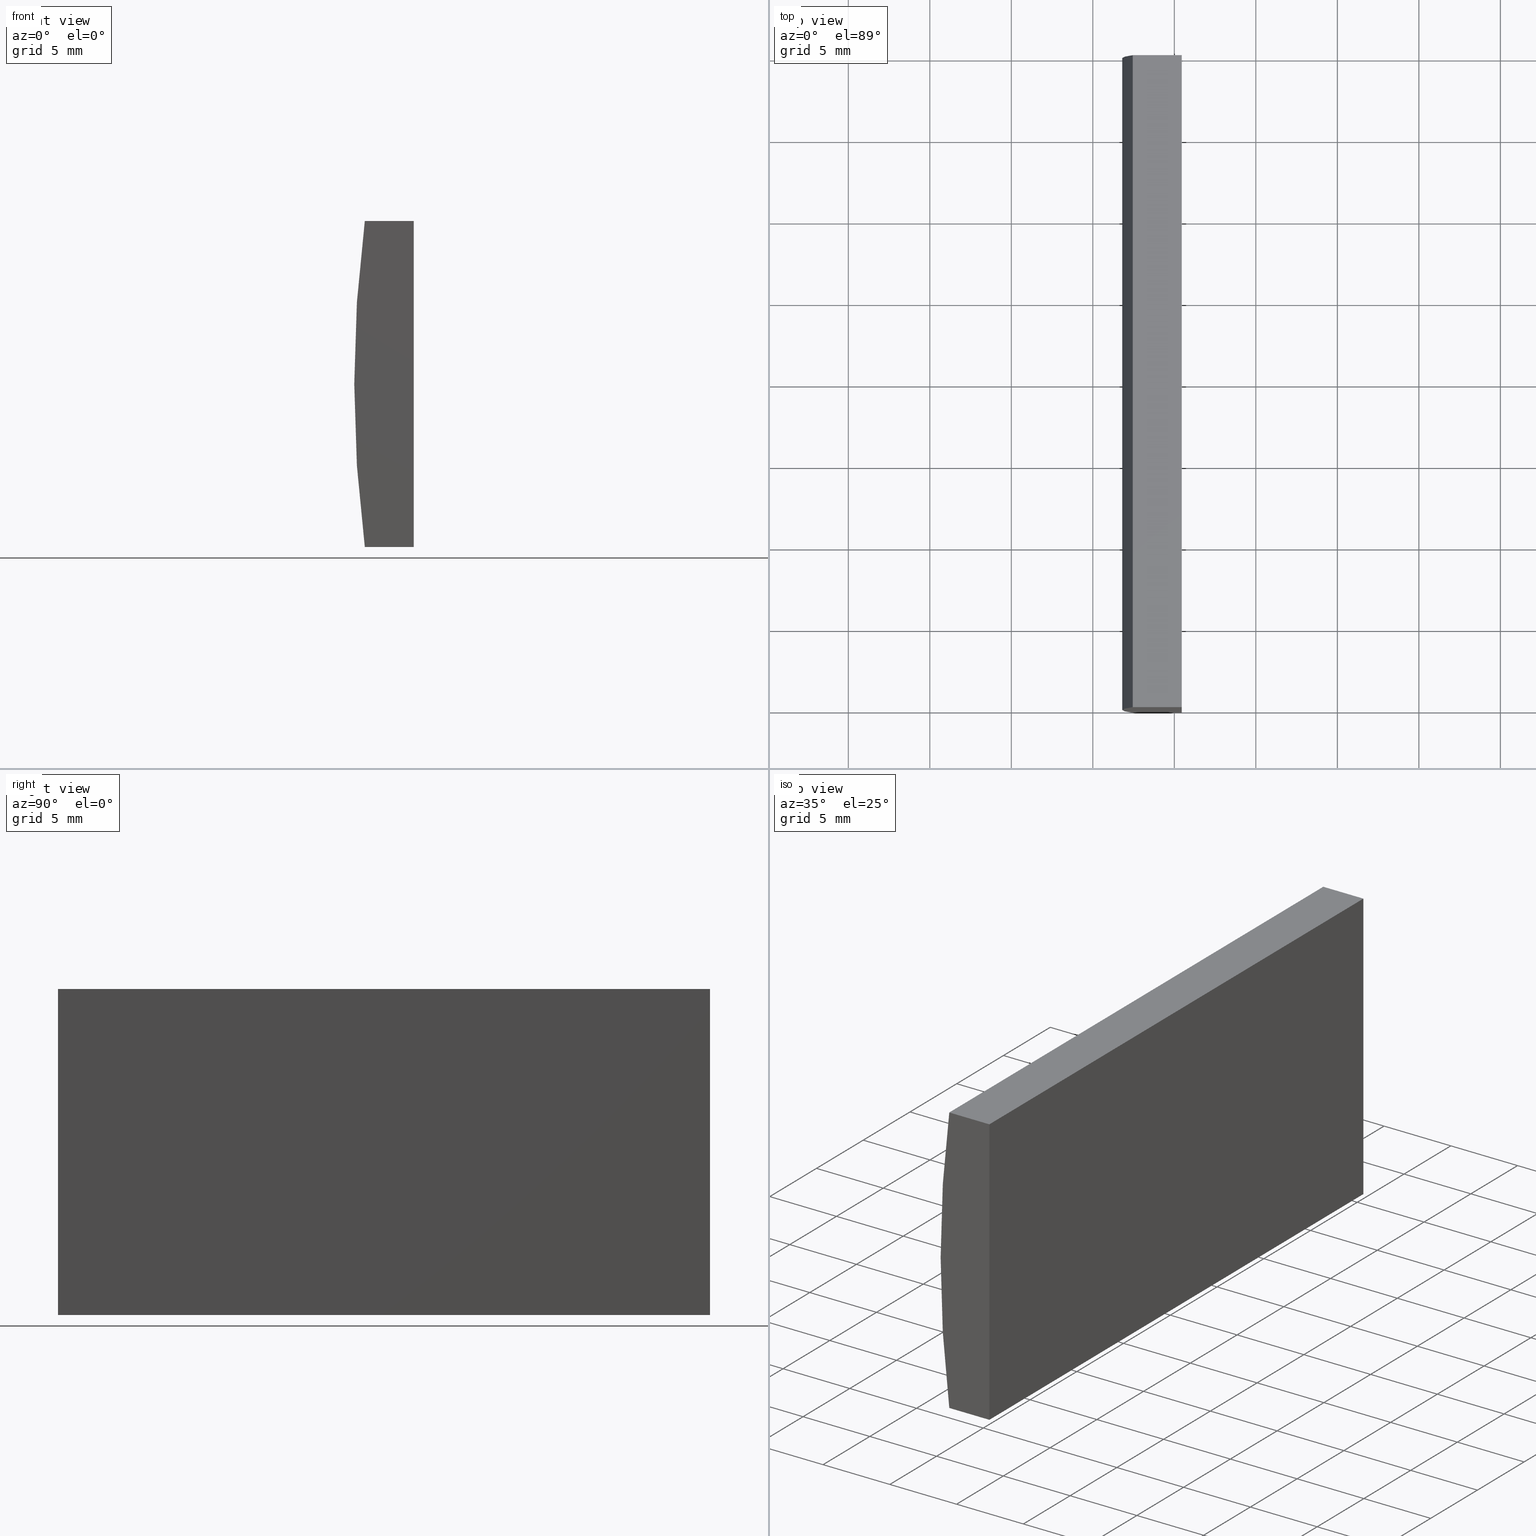
[diagram: canonical four-view strip — front | top / right | iso, engineering-drawing reading convention]
A machine part, canonical four-view strip (front | top / right | iso — engineering-drawing reading convention). The complete STEP part file that produces these views, byte-faithful:
ISO-10303-21;
HEADER;
FILE_DESCRIPTION (( 'STEP AP214' ),
    '1' );
FILE_NAME ('155050.STEP',
    '2019-06-18T06:02:12',
    ( 'user' ),
    ( '΢���й�' ),
    'SwSTEP 2.0',
    'SolidWorks 2016',
    '' );
FILE_SCHEMA (( 'AUTOMOTIVE_DESIGN' ));
ENDSEC;

DATA;
#1 = ORIENTED_EDGE ( 'NONE', *, *, #166, .F. ) ;
#2 = DIRECTION ( 'NONE',  ( 0.0000000000000000000, -0.0000000000000000000, 1.000000000000000000 ) ) ;
#3 = CARTESIAN_POINT ( 'NONE',  ( 4.355204334851265500, 0.0000000000000000000, 4.286263797015675000E-017 ) ) ;
#4 = STYLED_ITEM ( 'NONE', ( #117 ), #39 ) ;
#5 = ORIENTED_EDGE ( 'NONE', *, *, #200, .F. ) ;
#6 = SURFACE_STYLE_FILL_AREA ( #174 ) ;
#7 = DIRECTION ( 'NONE',  ( -0.0000000000000000000, -1.000000000000000000, -0.0000000000000000000 ) ) ;
#8 =( GEOMETRIC_REPRESENTATION_CONTEXT ( 3 ) GLOBAL_UNCERTAINTY_ASSIGNED_CONTEXT ( ( #141 ) ) GLOBAL_UNIT_ASSIGNED_CONTEXT ( ( #169, #50, #59 ) ) REPRESENTATION_CONTEXT ( 'NONE', 'WORKASPACE' ) );
#9 = PRODUCT_CONTEXT ( 'NONE', #36, 'mechanical' ) ;
#10 = VERTEX_POINT ( 'NONE', #33 ) ;
#11 = LINE ( 'NONE', #112, #54 ) ;
#12 = ORIENTED_EDGE ( 'NONE', *, *, #165, .T. ) ;
#13 = AXIS2_PLACEMENT_3D ( 'NONE', #35, #116, #37 ) ;
#14 = CARTESIAN_POINT ( 'NONE',  ( -72.54734763840902200, 40.00000000000000000, -10.00000000000000000 ) ) ;
#15 = EDGE_CURVE ( 'NONE', #183, #96, #198, .T. ) ;
#16 = LINE ( 'NONE', #148, #177 ) ;
#17 = CYLINDRICAL_SURFACE ( 'NONE', #13, 77.54999999999999700 ) ;
#18 = VERTEX_POINT ( 'NONE', #154 ) ;
#19 = PLANE ( 'NONE',  #188 ) ;
#20 = AXIS2_PLACEMENT_3D ( 'NONE', #34, #69, #195 ) ;
#21 = LINE ( 'NONE', #152, #136 ) ;
#22 = EDGE_LOOP ( 'NONE', ( #145, #41, #29, #60 ) ) ;
#23 = ORIENTED_EDGE ( 'NONE', *, *, #121, .F. ) ;
#24 = ADVANCED_FACE ( 'NONE', ( #168 ), #95, .F. ) ;
#25 = PRESENTATION_STYLE_ASSIGNMENT (( #123 ) ) ;
#26 = FACE_OUTER_BOUND ( 'NONE', #27, .T. ) ;
#27 = EDGE_LOOP ( 'NONE', ( #5, #160, #99, #137 ) ) ;
#28 = DIRECTION ( 'NONE',  ( -1.000000000000000000, -0.0000000000000000000, -5.777496914044019200E-015 ) ) ;
#29 = ORIENTED_EDGE ( 'NONE', *, *, #113, .T. ) ;
#30 = DIRECTION ( 'NONE',  ( 0.0000000000000000000, 0.0000000000000000000, 1.000000000000000000 ) ) ;
#31 = FILL_AREA_STYLE_COLOUR ( '', #42 ) ;
#32 = ORIENTED_EDGE ( 'NONE', *, *, #113, .F. ) ;
#33 = CARTESIAN_POINT ( 'NONE',  ( -69.54479566514874000, 0.0000000000000000000, -9.999999999999982200 ) ) ;
#34 = CARTESIAN_POINT ( 'NONE',  ( -72.54734763840902200, 40.00000000000000000, -10.00000000000000000 ) ) ;
#35 = CARTESIAN_POINT ( 'NONE',  ( 4.355204334851265500, 40.00000000000000000, 4.286263797015675000E-017 ) ) ;
#36 = APPLICATION_CONTEXT ( 'automotive_design' ) ;
#37 = DIRECTION ( 'NONE',  ( 0.0000000000000000000, 0.0000000000000000000, -1.000000000000000000 ) ) ;
#38 = DIRECTION ( 'NONE',  ( 0.0000000000000000000, 0.0000000000000000000, 1.000000000000000000 ) ) ;
#39 = MANIFOLD_SOLID_BREP ( '͹̨-����1', #176 ) ;
#40 = EDGE_CURVE ( 'NONE', #96, #10, #11, .T. ) ;
#41 = ORIENTED_EDGE ( 'NONE', *, *, #121, .T. ) ;
#42 = COLOUR_RGB ( '',1.000000000000000000, 1.000000000000000000, 1.000000000000000000 ) ;
#43 = DIRECTION ( 'NONE',  ( -1.000000000000000000, -0.0000000000000000000, -5.777496914044019200E-015 ) ) ;
#44 = SURFACE_SIDE_STYLE ('',( #6 ) ) ;
#45 = LINE ( 'NONE', #173, #192 ) ;
#46 = ORIENTED_EDGE ( 'NONE', *, *, #101, .T. ) ;
#47 = ORIENTED_EDGE ( 'NONE', *, *, #181, .F. ) ;
#48 = APPLICATION_PROTOCOL_DEFINITION ( 'draft international standard', 'automotive_design', 1998, #52 ) ;
#49 = LINE ( 'NONE', #14, #98 ) ;
#50 =( NAMED_UNIT ( * ) PLANE_ANGLE_UNIT ( ) SI_UNIT ( $, .RADIAN. ) );
#51 = DIRECTION ( 'NONE',  ( 0.0000000000000000000, 1.000000000000000000, 0.0000000000000000000 ) ) ;
#52 = APPLICATION_CONTEXT ( 'automotive_design' ) ;
#53 = CARTESIAN_POINT ( 'NONE',  ( -69.54479566514874000, 0.0000000000000000000, 10.00000000000000000 ) ) ;
#54 = VECTOR ( 'NONE', #122, 1000.000000000000000 ) ;
#55 = APPLICATION_PROTOCOL_DEFINITION ( 'draft international standard', 'automotive_design', 1998, #36 ) ;
#56 = AXIS2_PLACEMENT_3D ( 'NONE', #185, #80, #88 ) ;
#57 = PRESENTATION_LAYER_ASSIGNMENT (  '', '', ( #4 ) ) ;
#58 = LINE ( 'NONE', #94, #132 ) ;
#59 =( NAMED_UNIT ( * ) SI_UNIT ( $, .STERADIAN. ) SOLID_ANGLE_UNIT ( ) );
#60 = ORIENTED_EDGE ( 'NONE', *, *, #181, .T. ) ;
#61 = PRODUCT_DEFINITION_CONTEXT ( 'detailed design', #52, 'design' ) ;
#62 = PLANE ( 'NONE',  #149 ) ;
#63 =( NAMED_UNIT ( * ) PLANE_ANGLE_UNIT ( ) SI_UNIT ( $, .RADIAN. ) );
#64 = AXIS2_PLACEMENT_3D ( 'NONE', #139, #51, #178 ) ;
#65 = VECTOR ( 'NONE', #68, 1000.000000000000000 ) ;
#66 = ORIENTED_EDGE ( 'NONE', *, *, #40, .T. ) ;
#67 = ORIENTED_EDGE ( 'NONE', *, *, #165, .F. ) ;
#68 = DIRECTION ( 'NONE',  ( -0.0000000000000000000, -1.000000000000000000, -0.0000000000000000000 ) ) ;
#69 = DIRECTION ( 'NONE',  ( -5.777496914044019200E-015, 0.0000000000000000000, 1.000000000000000000 ) ) ;
#70 = ADVANCED_FACE ( 'NONE', ( #150 ), #17, .T. ) ;
#71 = CARTESIAN_POINT ( 'NONE',  ( -72.54734763840902200, 40.00000000000000000, 10.00000000000000000 ) ) ;
#72 = CIRCLE ( 'NONE', #138, 77.54999999999999700 ) ;
#73 = VERTEX_POINT ( 'NONE', #75 ) ;
#74 = ADVANCED_FACE ( 'NONE', ( #82 ), #19, .F. ) ;
#75 = CARTESIAN_POINT ( 'NONE',  ( -69.54479566514874000, 40.00000000000000000, -9.999999999999982200 ) ) ;
#76 = FACE_OUTER_BOUND ( 'NONE', #203, .T. ) ;
#77 = SURFACE_SIDE_STYLE ('',( #115 ) ) ;
#78 = DIRECTION ( 'NONE',  ( 0.0000000000000000000, 0.0000000000000000000, -1.000000000000000000 ) ) ;
#79 =( GEOMETRIC_REPRESENTATION_CONTEXT ( 3 ) GLOBAL_UNCERTAINTY_ASSIGNED_CONTEXT ( ( #93 ) ) GLOBAL_UNIT_ASSIGNED_CONTEXT ( ( #91, #63, #125 ) ) REPRESENTATION_CONTEXT ( 'NONE', 'WORKASPACE' ) );
#80 = DIRECTION ( 'NONE',  ( 0.0000000000000000000, 1.000000000000000000, 0.0000000000000000000 ) ) ;
#81 =( NAMED_UNIT ( * ) SI_UNIT ( $, .STERADIAN. ) SOLID_ANGLE_UNIT ( ) );
#82 = FACE_OUTER_BOUND ( 'NONE', #85, .T. ) ;
#83 = VERTEX_POINT ( 'NONE', #189 ) ;
#84 = VECTOR ( 'NONE', #28, 1000.000000000000000 ) ;
#85 = EDGE_LOOP ( 'NONE', ( #127, #119, #23, #46 ) ) ;
#86 = EDGE_CURVE ( 'NONE', #89, #83, #155, .T. ) ;
#87 = EDGE_CURVE ( 'NONE', #18, #96, #193, .T. ) ;
#88 = DIRECTION ( 'NONE',  ( 0.0000000000000000000, 0.0000000000000000000, 1.000000000000000000 ) ) ;
#89 = VERTEX_POINT ( 'NONE', #130 ) ;
#90 = ORIENTED_EDGE ( 'NONE', *, *, #101, .F. ) ;
#91 =( LENGTH_UNIT ( ) NAMED_UNIT ( * ) SI_UNIT ( .MILLI., .METRE. ) );
#92 = CARTESIAN_POINT ( 'NONE',  ( -72.54734763840902200, 40.00000000000000000, -10.00000000000000000 ) ) ;
#93 = UNCERTAINTY_MEASURE_WITH_UNIT (LENGTH_MEASURE( 1.000000000000000100E-005 ), #91, 'distance_accuracy_value', 'NONE');
#94 = CARTESIAN_POINT ( 'NONE',  ( -72.54734763840902200, 0.0000000000000000000, -10.00000000000000000 ) ) ;
#95 = PLANE ( 'NONE',  #172 ) ;
#96 = VERTEX_POINT ( 'NONE', #53 ) ;
#97 = CARTESIAN_POINT ( 'NONE',  ( -69.54479566514874000, 40.00000000000000000, 10.00000000000000000 ) ) ;
#98 = VECTOR ( 'NONE', #129, 1000.000000000000000 ) ;
#99 = ORIENTED_EDGE ( 'NONE', *, *, #40, .F. ) ;
#100 =( LENGTH_UNIT ( ) NAMED_UNIT ( * ) SI_UNIT ( .MILLI., .METRE. ) );
#101 = EDGE_CURVE ( 'NONE', #83, #18, #114, .T. ) ;
#102 = SHAPE_DEFINITION_REPRESENTATION ( #187, #107 ) ;
#103 = ADVANCED_FACE ( 'NONE', ( #76 ), #131, .F. ) ;
#104 = MECHANICAL_DESIGN_GEOMETRIC_PRESENTATION_REPRESENTATION (  '', ( #4 ), #184 ) ;
#105 = PRODUCT_DEFINITION ( 'δ֪', '', #199, #61 ) ;
#106 = STYLED_ITEM ( 'NONE', ( #25 ), #107 ) ;
#107 = ADVANCED_BREP_SHAPE_REPRESENTATION ( '155050', ( #39, #110 ), #79 ) ;
#108 = DIRECTION ( 'NONE',  ( -0.0000000000000000000, -1.000000000000000000, -0.0000000000000000000 ) ) ;
#109 = EDGE_CURVE ( 'NONE', #10, #151, #58, .T. ) ;
#110 = AXIS2_PLACEMENT_3D ( 'NONE', #167, #30, #164 ) ;
#111 = DIRECTION ( 'NONE',  ( 1.000000000000000000, 0.0000000000000000000, 0.0000000000000000000 ) ) ;
#112 = CARTESIAN_POINT ( 'NONE',  ( -69.54479566514874000, 0.0000000000000000000, -9.999999999999982200 ) ) ;
#113 = EDGE_CURVE ( 'NONE', #183, #73, #45, .T. ) ;
#114 = LINE ( 'NONE', #179, #65 ) ;
#115 = SURFACE_STYLE_FILL_AREA ( #204 ) ;
#116 = DIRECTION ( 'NONE',  ( -0.0000000000000000000, -1.000000000000000000, -0.0000000000000000000 ) ) ;
#117 = PRESENTATION_STYLE_ASSIGNMENT (( #186 ) ) ;
#118 = PLANE ( 'NONE',  #64 ) ;
#119 = ORIENTED_EDGE ( 'NONE', *, *, #15, .F. ) ;
#120 = CARTESIAN_POINT ( 'NONE',  ( -72.54734763840902200, 0.0000000000000000000, 10.00000000000000000 ) ) ;
#121 = EDGE_CURVE ( 'NONE', #83, #183, #21, .T. ) ;
#122 = DIRECTION ( 'NONE',  ( -0.0000000000000000000, -0.0000000000000000000, -1.000000000000000000 ) ) ;
#123 = SURFACE_STYLE_USAGE ( .BOTH. , #44 ) ;
#124 = PRODUCT_RELATED_PRODUCT_CATEGORY ( 'part', '', ( #156 ) ) ;
#125 =( NAMED_UNIT ( * ) SI_UNIT ( $, .STERADIAN. ) SOLID_ANGLE_UNIT ( ) );
#126 = VECTOR ( 'NONE', #111, 1000.000000000000000 ) ;
#127 = ORIENTED_EDGE ( 'NONE', *, *, #87, .T. ) ;
#128 = DIRECTION ( 'NONE',  ( -1.000000000000000000, 0.0000000000000000000, 0.0000000000000000000 ) ) ;
#129 = DIRECTION ( 'NONE',  ( -0.0000000000000000000, -1.000000000000000000, -0.0000000000000000000 ) ) ;
#130 = CARTESIAN_POINT ( 'NONE',  ( -72.54734763840902200, 40.00000000000000000, -10.00000000000000000 ) ) ;
#131 = PLANE ( 'NONE',  #20 ) ;
#132 = VECTOR ( 'NONE', #43, 1000.000000000000000 ) ;
#133 = DIRECTION ( 'NONE',  ( 1.000000000000000000, 0.0000000000000000000, 0.0000000000000000000 ) ) ;
#134 = PRESENTATION_LAYER_ASSIGNMENT (  '', '', ( #106 ) ) ;
#135 =( NAMED_UNIT ( * ) PLANE_ANGLE_UNIT ( ) SI_UNIT ( $, .RADIAN. ) );
#136 = VECTOR ( 'NONE', #133, 1000.000000000000000 ) ;
#137 = ORIENTED_EDGE ( 'NONE', *, *, #87, .F. ) ;
#138 = AXIS2_PLACEMENT_3D ( 'NONE', #3, #197, #38 ) ;
#139 = CARTESIAN_POINT ( 'NONE',  ( 4.355204334851265500, 0.0000000000000000000, 4.286263797015675000E-017 ) ) ;
#140 = DIRECTION ( 'NONE',  ( -0.0000000000000000000, -0.0000000000000000000, -1.000000000000000000 ) ) ;
#141 = UNCERTAINTY_MEASURE_WITH_UNIT (LENGTH_MEASURE( 1.000000000000000100E-005 ), #169, 'distance_accuracy_value', 'NONE');
#142 = CARTESIAN_POINT ( 'NONE',  ( -69.54479566514874000, 40.00000000000000000, -9.999999999999982200 ) ) ;
#143 = EDGE_LOOP ( 'NONE', ( #66, #1, #32, #171 ) ) ;
#144 = MECHANICAL_DESIGN_GEOMETRIC_PRESENTATION_REPRESENTATION (  '', ( #106 ), #8 ) ;
#145 = ORIENTED_EDGE ( 'NONE', *, *, #86, .T. ) ;
#146 = ADVANCED_FACE ( 'NONE', ( #182 ), #62, .T. ) ;
#147 = ORIENTED_EDGE ( 'NONE', *, *, #86, .F. ) ;
#148 = CARTESIAN_POINT ( 'NONE',  ( -69.54479566514874000, 40.00000000000000000, -9.999999999999982200 ) ) ;
#149 = AXIS2_PLACEMENT_3D ( 'NONE', #158, #191, #2 ) ;
#150 = FACE_OUTER_BOUND ( 'NONE', #190, .T. ) ;
#151 = VERTEX_POINT ( 'NONE', #170 ) ;
#152 = CARTESIAN_POINT ( 'NONE',  ( -72.54734763840902200, 40.00000000000000000, 10.00000000000000000 ) ) ;
#153 = ORIENTED_EDGE ( 'NONE', *, *, #166, .T. ) ;
#154 = CARTESIAN_POINT ( 'NONE',  ( -72.54734763840902200, 0.0000000000000000000, 10.00000000000000000 ) ) ;
#155 = CIRCLE ( 'NONE', #56, 77.54999999999999700 ) ;
#156 = PRODUCT ( '155050', '155050', '', ( #9 ) ) ;
#157 = ORIENTED_EDGE ( 'NONE', *, *, #109, .T. ) ;
#158 = CARTESIAN_POINT ( 'NONE',  ( 4.355204334851265500, 40.00000000000000000, 4.286263797015675000E-017 ) ) ;
#159 = UNCERTAINTY_MEASURE_WITH_UNIT (LENGTH_MEASURE( 1.000000000000000100E-005 ), #100, 'distance_accuracy_value', 'NONE');
#160 = ORIENTED_EDGE ( 'NONE', *, *, #109, .F. ) ;
#161 = DIRECTION ( 'NONE',  ( 0.0000000000000000000, 0.0000000000000000000, 1.000000000000000000 ) ) ;
#162 = LINE ( 'NONE', #92, #84 ) ;
#163 = COLOUR_RGB ( '',1.000000000000000000, 1.000000000000000000, 1.000000000000000000 ) ;
#164 = DIRECTION ( 'NONE',  ( 1.000000000000000000, 0.0000000000000000000, 0.0000000000000000000 ) ) ;
#165 = EDGE_CURVE ( 'NONE', #89, #151, #49, .T. ) ;
#166 = EDGE_CURVE ( 'NONE', #73, #10, #16, .T. ) ;
#167 = CARTESIAN_POINT ( 'NONE',  ( 0.0000000000000000000, 0.0000000000000000000, 0.0000000000000000000 ) ) ;
#168 = FACE_OUTER_BOUND ( 'NONE', #143, .T. ) ;
#169 =( LENGTH_UNIT ( ) NAMED_UNIT ( * ) SI_UNIT ( .MILLI., .METRE. ) );
#170 = CARTESIAN_POINT ( 'NONE',  ( -72.54734763840902200, 0.0000000000000000000, -10.00000000000000000 ) ) ;
#171 = ORIENTED_EDGE ( 'NONE', *, *, #15, .T. ) ;
#172 = AXIS2_PLACEMENT_3D ( 'NONE', #142, #128, #161 ) ;
#173 = CARTESIAN_POINT ( 'NONE',  ( -69.54479566514874000, 40.00000000000000000, -9.999999999999982200 ) ) ;
#174 = FILL_AREA_STYLE ('',( #31 ) ) ;
#175 = FILL_AREA_STYLE_COLOUR ( '', #163 ) ;
#176 = CLOSED_SHELL ( 'NONE', ( #70, #74, #24, #103, #146, #202 ) ) ;
#177 = VECTOR ( 'NONE', #7, 1000.000000000000000 ) ;
#178 = DIRECTION ( 'NONE',  ( 0.0000000000000000000, -0.0000000000000000000, 1.000000000000000000 ) ) ;
#179 = CARTESIAN_POINT ( 'NONE',  ( -72.54734763840902200, 40.00000000000000000, 10.00000000000000000 ) ) ;
#180 = DIRECTION ( 'NONE',  ( -1.000000000000000000, 0.0000000000000000000, -0.0000000000000000000 ) ) ;
#181 = EDGE_CURVE ( 'NONE', #73, #89, #162, .T. ) ;
#182 = FACE_OUTER_BOUND ( 'NONE', #22, .T. ) ;
#183 = VERTEX_POINT ( 'NONE', #97 ) ;
#184 =( GEOMETRIC_REPRESENTATION_CONTEXT ( 3 ) GLOBAL_UNCERTAINTY_ASSIGNED_CONTEXT ( ( #159 ) ) GLOBAL_UNIT_ASSIGNED_CONTEXT ( ( #100, #135, #81 ) ) REPRESENTATION_CONTEXT ( 'NONE', 'WORKASPACE' ) );
#185 = CARTESIAN_POINT ( 'NONE',  ( 4.355204334851265500, 40.00000000000000000, 4.286263797015675000E-017 ) ) ;
#186 = SURFACE_STYLE_USAGE ( .BOTH. , #77 ) ;
#187 = PRODUCT_DEFINITION_SHAPE ( 'NONE', 'NONE',  #105 ) ;
#188 = AXIS2_PLACEMENT_3D ( 'NONE', #71, #78, #180 ) ;
#189 = CARTESIAN_POINT ( 'NONE',  ( -72.54734763840902200, 40.00000000000000000, 10.00000000000000000 ) ) ;
#190 = EDGE_LOOP ( 'NONE', ( #194, #90, #147, #12 ) ) ;
#191 = DIRECTION ( 'NONE',  ( 0.0000000000000000000, 1.000000000000000000, 0.0000000000000000000 ) ) ;
#192 = VECTOR ( 'NONE', #140, 1000.000000000000000 ) ;
#193 = LINE ( 'NONE', #120, #126 ) ;
#194 = ORIENTED_EDGE ( 'NONE', *, *, #200, .T. ) ;
#195 = DIRECTION ( 'NONE',  ( 1.000000000000000000, 0.0000000000000000000, 5.777496914044019200E-015 ) ) ;
#196 = VECTOR ( 'NONE', #108, 1000.000000000000000 ) ;
#197 = DIRECTION ( 'NONE',  ( 0.0000000000000000000, 1.000000000000000000, 0.0000000000000000000 ) ) ;
#198 = LINE ( 'NONE', #201, #196 ) ;
#199 = PRODUCT_DEFINITION_FORMATION_WITH_SPECIFIED_SOURCE ( '�κ�', '', #156, .NOT_KNOWN. ) ;
#200 = EDGE_CURVE ( 'NONE', #151, #18, #72, .T. ) ;
#201 = CARTESIAN_POINT ( 'NONE',  ( -69.54479566514874000, 40.00000000000000000, 10.00000000000000000 ) ) ;
#202 = ADVANCED_FACE ( 'NONE', ( #26 ), #118, .F. ) ;
#203 = EDGE_LOOP ( 'NONE', ( #157, #67, #47, #153 ) ) ;
#204 = FILL_AREA_STYLE ('',( #175 ) ) ;
ENDSEC;
END-ISO-10303-21;
